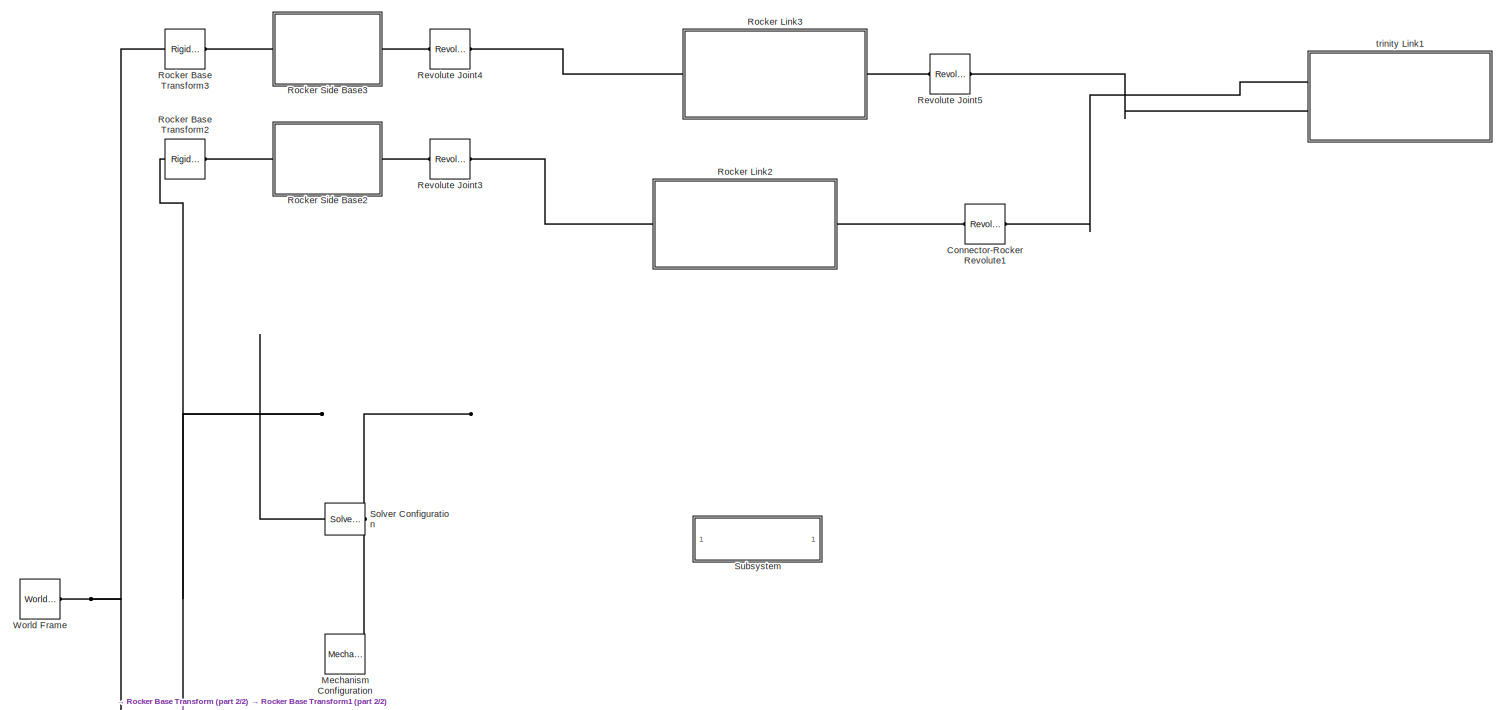
[diagram: root canvas - part 1/2, full width, top band]
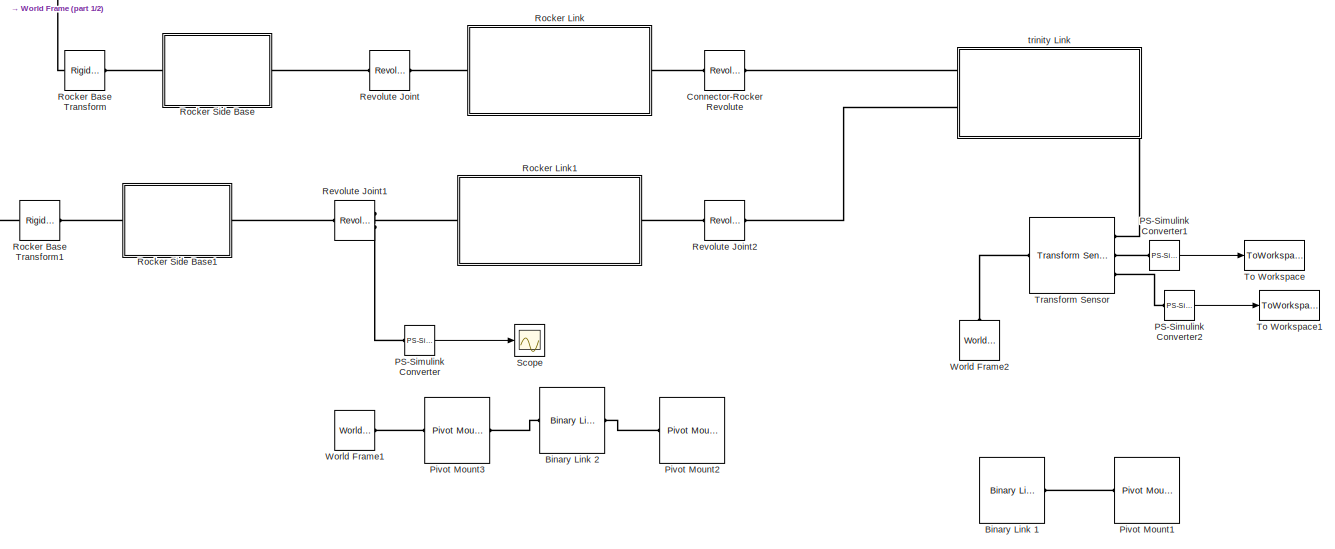
[diagram: root canvas - part 2/2, full width, bottom band]
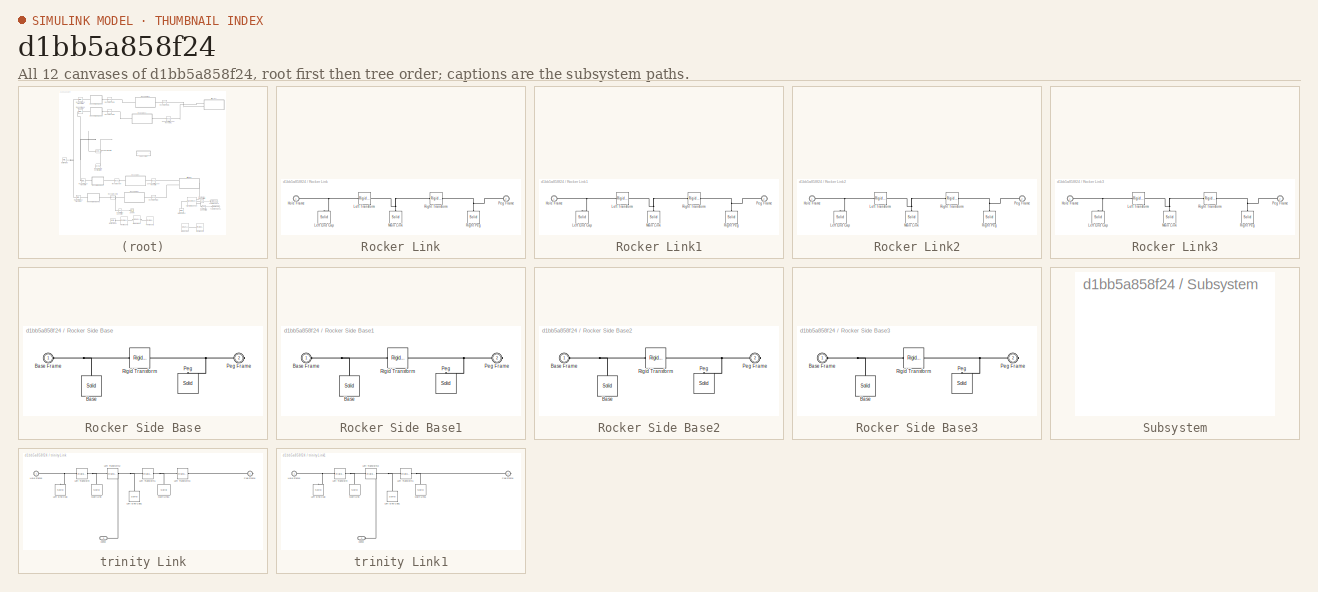
[diagram: thumbnail index - all 12 canvases of the model, root first then tree order]
MODEL slx_d1bb5a858f24
KIND model
CONFIG AbsTol = auto
CONFIG EnableMultiTasking = off
CONFIG FixedStep = auto
CONFIG MaxStep = auto
CONFIG MinStep = auto
CONFIG RelTol = 1e-3
CONFIG SampleTimeConstraint = Unconstrained
CONFIG Solver = VariableStepAuto
CONFIG SolverName = VariableStepAuto
CONFIG StartTime = 0.0
CONFIG StopTime = 10.0
BLOCK [Reference] Binary Link 1  REF=smdoc_compound_rigid_bodies/Binary Link A
  Commented = on
  Ports = [0, 0, 0, 0, 0, 1, 1]
  SourceBlock = smdoc_compound_rigid_bodies/Binary Link A
BLOCK [Reference] Binary Link 2  REF=smdoc_compound_rigid_bodies/Binary Link A
  Commented = on
  Ports = [0, 0, 0, 0, 0, 1, 1]
  SourceBlock = smdoc_compound_rigid_bodies/Binary Link A
BLOCK [Reference] Connector-Rocker Revolute  REF=sm_lib/Joints/Revolute Joint
  Ports = [0, 0, 0, 0, 0, 1, 1]
  SourceBlock = sm_lib/Joints/Revolute Joint
  SourceProductBaseCode = MS
  SourceProductName = Simscape Multibody
  SourceType = Revolute Joint
BLOCK [Reference] Connector-Rocker Revolute1  REF=sm_lib/Joints/Revolute Joint
  Ports = [0, 0, 0, 0, 0, 1, 1]
  SourceBlock = sm_lib/Joints/Revolute Joint
  SourceProductBaseCode = MS
  SourceProductName = Simscape Multibody
  SourceType = Revolute Joint
BLOCK [Reference] Mechanism Configuration  REF=sm_lib/Utilities/Mechanism
Configuration
  Ports = [0, 0, 0, 0, 0, 0, 1]
  SourceBlock = sm_lib/Utilities/Mechanism\nConfiguration
  SourceProductBaseCode = MS
  SourceProductName = Simscape Multibody
  SourceType = Mechanism\nConfiguration
BLOCK [Reference] PS-Simulink Converter  REF=nesl_utility/PS-Simulink
Converter
  Ports = [0, 1, 0, 0, 0, 1]
  SourceBlock = nesl_utility/PS-Simulink\nConverter
  SourceProductBaseCode = SS
  SourceProductName = Simscape
  SourceType = PS-Simulink\nConverter
BLOCK [Reference] PS-Simulink Converter1  REF=nesl_utility/PS-Simulink
Converter
  Ports = [0, 1, 0, 0, 0, 1]
  SourceBlock = nesl_utility/PS-Simulink\nConverter
  SourceProductBaseCode = SS
  SourceProductName = Simscape
  SourceType = PS-Simulink\nConverter
BLOCK [Reference] PS-Simulink Converter2  REF=nesl_utility/PS-Simulink
Converter
  Ports = [0, 1, 0, 0, 0, 1]
  SourceBlock = nesl_utility/PS-Simulink\nConverter
  SourceProductBaseCode = SS
  SourceProductName = Simscape
  SourceType = PS-Simulink\nConverter
BLOCK [Reference] Pivot Mount1  REF=smdoc_compound_rigid_bodies/Pivot Mount
  Commented = on
  Ports = [0, 0, 0, 0, 0, 1, 1]
  SourceBlock = smdoc_compound_rigid_bodies/Pivot Mount
BLOCK [Reference] Pivot Mount2  REF=smdoc_compound_rigid_bodies/Pivot Mount
  Commented = on
  Ports = [0, 0, 0, 0, 0, 1, 1]
  SourceBlock = smdoc_compound_rigid_bodies/Pivot Mount
BLOCK [Reference] Pivot Mount3  REF=smdoc_compound_rigid_bodies/Pivot Mount
  Commented = on
  Ports = [0, 0, 0, 0, 0, 1, 1]
  SourceBlock = smdoc_compound_rigid_bodies/Pivot Mount
BLOCK [Reference] Revolute Joint  REF=sm_lib/Joints/Revolute Joint
  Ports = [0, 0, 0, 0, 0, 1, 1]
  SourceBlock = sm_lib/Joints/Revolute Joint
  SourceProductBaseCode = MS
  SourceProductName = Simscape Multibody
  SourceType = Revolute Joint
BLOCK [Reference] Revolute Joint1  REF=sm_lib/Joints/Revolute Joint
  Ports = [0, 0, 0, 0, 0, 1, 2]
  SourceBlock = sm_lib/Joints/Revolute Joint
  SourceProductBaseCode = MS
  SourceProductName = Simscape Multibody
  SourceType = Revolute Joint
BLOCK [Reference] Revolute Joint2  REF=sm_lib/Joints/Revolute Joint
  Ports = [0, 0, 0, 0, 0, 1, 1]
  SourceBlock = sm_lib/Joints/Revolute Joint
  SourceProductBaseCode = MS
  SourceProductName = Simscape Multibody
  SourceType = Revolute Joint
BLOCK [Reference] Revolute Joint3  REF=sm_lib/Joints/Revolute Joint
  Ports = [0, 0, 0, 0, 0, 1, 1]
  SourceBlock = sm_lib/Joints/Revolute Joint
  SourceProductBaseCode = MS
  SourceProductName = Simscape Multibody
  SourceType = Revolute Joint
BLOCK [Reference] Revolute Joint4  REF=sm_lib/Joints/Revolute Joint
  Ports = [0, 0, 0, 0, 0, 1, 1]
  SourceBlock = sm_lib/Joints/Revolute Joint
  SourceProductBaseCode = MS
  SourceProductName = Simscape Multibody
  SourceType = Revolute Joint
BLOCK [Reference] Revolute Joint5  REF=sm_lib/Joints/Revolute Joint
  Ports = [0, 0, 0, 0, 0, 1, 1]
  SourceBlock = sm_lib/Joints/Revolute Joint
  SourceProductBaseCode = MS
  SourceProductName = Simscape Multibody
  SourceType = Revolute Joint
BLOCK [Reference] Rocker Base Transform  REF=sm_lib/Frames and
Transforms/Rigid
Transform
  Ports = [0, 0, 0, 0, 0, 1, 1]
  SourceBlock = sm_lib/Frames and\nTransforms/Rigid\nTransform
  SourceProductBaseCode = MS
  SourceProductName = Simscape Multibody
  SourceType = Rigid\nTransform
BLOCK [Reference] Rocker Base Transform1  REF=sm_lib/Frames and
Transforms/Rigid
Transform
  Ports = [0, 0, 0, 0, 0, 1, 1]
  SourceBlock = sm_lib/Frames and\nTransforms/Rigid\nTransform
  SourceProductBaseCode = MS
  SourceProductName = Simscape Multibody
  SourceType = Rigid\nTransform
BLOCK [Reference] Rocker Base Transform2  REF=sm_lib/Frames and
Transforms/Rigid
Transform
  Ports = [0, 0, 0, 0, 0, 1, 1]
  SourceBlock = sm_lib/Frames and\nTransforms/Rigid\nTransform
  SourceProductBaseCode = MS
  SourceProductName = Simscape Multibody
  SourceType = Rigid\nTransform
BLOCK [Reference] Rocker Base Transform3  REF=sm_lib/Frames and
Transforms/Rigid
Transform
  Ports = [0, 0, 0, 0, 0, 1, 1]
  SourceBlock = sm_lib/Frames and\nTransforms/Rigid\nTransform
  SourceProductBaseCode = MS
  SourceProductName = Simscape Multibody
  SourceType = Rigid\nTransform
BLOCK [SubSystem] Rocker Link
  Ports = [0, 0, 0, 0, 0, 1, 1]
  RequestExecContextInheritance = off
  Variant = off
BLOCK [PMIOPort] Rocker Link/Hole Frame
  Port = 1
  Side = Left
BLOCK [Reference] Rocker Link/Left End Cap  REF=sm_lib/Body Elements/Solid
  Ports = [0, 0, 0, 0, 0, 0, 1]
  SourceBlock = sm_lib/Body Elements/Solid
  SourceProductBaseCode = MS
  SourceProductName = Simscape Multibody
  SourceType = Solid
BLOCK [Reference] Rocker Link/Left Transform  REF=sm_lib/Frames and
Transforms/Rigid
Transform
  Ports = [0, 0, 0, 0, 0, 1, 1]
  SourceBlock = sm_lib/Frames and\nTransforms/Rigid\nTransform
  SourceProductBaseCode = MS
  SourceProductName = Simscape Multibody
  SourceType = Rigid\nTransform
BLOCK [Reference] Rocker Link/Main Link  REF=sm_lib/Body Elements/Solid
  Ports = [0, 0, 0, 0, 0, 0, 1]
  SourceBlock = sm_lib/Body Elements/Solid
  SourceProductBaseCode = MS
  SourceProductName = Simscape Multibody
  SourceType = Solid
BLOCK [PMIOPort] Rocker Link/Peg Frame
  Port = 2
  Side = Right
BLOCK [Reference] Rocker Link/Right Peg  REF=sm_lib/Body Elements/Solid
  Ports = [0, 0, 0, 0, 0, 0, 1]
  SourceBlock = sm_lib/Body Elements/Solid
  SourceProductBaseCode = MS
  SourceProductName = Simscape Multibody
  SourceType = Solid
BLOCK [Reference] Rocker Link/Right Transform  REF=sm_lib/Frames and
Transforms/Rigid
Transform
  Ports = [0, 0, 0, 0, 0, 1, 1]
  SourceBlock = sm_lib/Frames and\nTransforms/Rigid\nTransform
  SourceProductBaseCode = MS
  SourceProductName = Simscape Multibody
  SourceType = Rigid\nTransform
BLOCK [SubSystem] Rocker Link1
  Ports = [0, 0, 0, 0, 0, 1, 1]
  RequestExecContextInheritance = off
  Variant = off
BLOCK [PMIOPort] Rocker Link1/Hole Frame
  Port = 1
  Side = Left
BLOCK [Reference] Rocker Link1/Left End Cap  REF=sm_lib/Body Elements/Solid
  Ports = [0, 0, 0, 0, 0, 0, 1]
  SourceBlock = sm_lib/Body Elements/Solid
  SourceProductBaseCode = MS
  SourceProductName = Simscape Multibody
  SourceType = Solid
BLOCK [Reference] Rocker Link1/Left Transform  REF=sm_lib/Frames and
Transforms/Rigid
Transform
  Ports = [0, 0, 0, 0, 0, 1, 1]
  SourceBlock = sm_lib/Frames and\nTransforms/Rigid\nTransform
  SourceProductBaseCode = MS
  SourceProductName = Simscape Multibody
  SourceType = Rigid\nTransform
BLOCK [Reference] Rocker Link1/Main Link  REF=sm_lib/Body Elements/Solid
  Ports = [0, 0, 0, 0, 0, 0, 1]
  SourceBlock = sm_lib/Body Elements/Solid
  SourceProductBaseCode = MS
  SourceProductName = Simscape Multibody
  SourceType = Solid
BLOCK [PMIOPort] Rocker Link1/Peg Frame
  Port = 2
  Side = Right
BLOCK [Reference] Rocker Link1/Right Peg  REF=sm_lib/Body Elements/Solid
  Ports = [0, 0, 0, 0, 0, 0, 1]
  SourceBlock = sm_lib/Body Elements/Solid
  SourceProductBaseCode = MS
  SourceProductName = Simscape Multibody
  SourceType = Solid
BLOCK [Reference] Rocker Link1/Right Transform  REF=sm_lib/Frames and
Transforms/Rigid
Transform
  Ports = [0, 0, 0, 0, 0, 1, 1]
  SourceBlock = sm_lib/Frames and\nTransforms/Rigid\nTransform
  SourceProductBaseCode = MS
  SourceProductName = Simscape Multibody
  SourceType = Rigid\nTransform
BLOCK [SubSystem] Rocker Link2
  Ports = [0, 0, 0, 0, 0, 1, 1]
  RequestExecContextInheritance = off
  Variant = off
BLOCK [PMIOPort] Rocker Link2/Hole Frame
  Port = 1
  Side = Left
BLOCK [Reference] Rocker Link2/Left End Cap  REF=sm_lib/Body Elements/Solid
  Ports = [0, 0, 0, 0, 0, 0, 1]
  SourceBlock = sm_lib/Body Elements/Solid
  SourceProductBaseCode = MS
  SourceProductName = Simscape Multibody
  SourceType = Solid
BLOCK [Reference] Rocker Link2/Left Transform  REF=sm_lib/Frames and
Transforms/Rigid
Transform
  Ports = [0, 0, 0, 0, 0, 1, 1]
  SourceBlock = sm_lib/Frames and\nTransforms/Rigid\nTransform
  SourceProductBaseCode = MS
  SourceProductName = Simscape Multibody
  SourceType = Rigid\nTransform
BLOCK [Reference] Rocker Link2/Main Link  REF=sm_lib/Body Elements/Solid
  Ports = [0, 0, 0, 0, 0, 0, 1]
  SourceBlock = sm_lib/Body Elements/Solid
  SourceProductBaseCode = MS
  SourceProductName = Simscape Multibody
  SourceType = Solid
BLOCK [PMIOPort] Rocker Link2/Peg Frame
  Port = 2
  Side = Right
BLOCK [Reference] Rocker Link2/Right Peg  REF=sm_lib/Body Elements/Solid
  Ports = [0, 0, 0, 0, 0, 0, 1]
  SourceBlock = sm_lib/Body Elements/Solid
  SourceProductBaseCode = MS
  SourceProductName = Simscape Multibody
  SourceType = Solid
BLOCK [Reference] Rocker Link2/Right Transform  REF=sm_lib/Frames and
Transforms/Rigid
Transform
  Ports = [0, 0, 0, 0, 0, 1, 1]
  SourceBlock = sm_lib/Frames and\nTransforms/Rigid\nTransform
  SourceProductBaseCode = MS
  SourceProductName = Simscape Multibody
  SourceType = Rigid\nTransform
BLOCK [SubSystem] Rocker Link3
  Ports = [0, 0, 0, 0, 0, 1, 1]
  RequestExecContextInheritance = off
  Variant = off
BLOCK [PMIOPort] Rocker Link3/Hole Frame
  Port = 1
  Side = Left
BLOCK [Reference] Rocker Link3/Left End Cap  REF=sm_lib/Body Elements/Solid
  Ports = [0, 0, 0, 0, 0, 0, 1]
  SourceBlock = sm_lib/Body Elements/Solid
  SourceProductBaseCode = MS
  SourceProductName = Simscape Multibody
  SourceType = Solid
BLOCK [Reference] Rocker Link3/Left Transform  REF=sm_lib/Frames and
Transforms/Rigid
Transform
  Ports = [0, 0, 0, 0, 0, 1, 1]
  SourceBlock = sm_lib/Frames and\nTransforms/Rigid\nTransform
  SourceProductBaseCode = MS
  SourceProductName = Simscape Multibody
  SourceType = Rigid\nTransform
BLOCK [Reference] Rocker Link3/Main Link  REF=sm_lib/Body Elements/Solid
  Ports = [0, 0, 0, 0, 0, 0, 1]
  SourceBlock = sm_lib/Body Elements/Solid
  SourceProductBaseCode = MS
  SourceProductName = Simscape Multibody
  SourceType = Solid
BLOCK [PMIOPort] Rocker Link3/Peg Frame
  Port = 2
  Side = Right
BLOCK [Reference] Rocker Link3/Right Peg  REF=sm_lib/Body Elements/Solid
  Ports = [0, 0, 0, 0, 0, 0, 1]
  SourceBlock = sm_lib/Body Elements/Solid
  SourceProductBaseCode = MS
  SourceProductName = Simscape Multibody
  SourceType = Solid
BLOCK [Reference] Rocker Link3/Right Transform  REF=sm_lib/Frames and
Transforms/Rigid
Transform
  Ports = [0, 0, 0, 0, 0, 1, 1]
  SourceBlock = sm_lib/Frames and\nTransforms/Rigid\nTransform
  SourceProductBaseCode = MS
  SourceProductName = Simscape Multibody
  SourceType = Rigid\nTransform
BLOCK [SubSystem] Rocker Side Base
  Ports = [0, 0, 0, 0, 0, 1, 1]
  RequestExecContextInheritance = off
  Variant = off
BLOCK [Reference] Rocker Side Base/Base  REF=sm_lib/Body Elements/Solid
  Ports = [0, 0, 0, 0, 0, 0, 1]
  SourceBlock = sm_lib/Body Elements/Solid
  SourceProductBaseCode = MS
  SourceProductName = Simscape Multibody
  SourceType = Solid
BLOCK [PMIOPort] Rocker Side Base/Base Frame
  Port = 1
  Side = Left
BLOCK [Reference] Rocker Side Base/Peg  REF=sm_lib/Body Elements/Solid
  Ports = [0, 0, 0, 0, 0, 0, 1]
  SourceBlock = sm_lib/Body Elements/Solid
  SourceProductBaseCode = MS
  SourceProductName = Simscape Multibody
  SourceType = Solid
BLOCK [PMIOPort] Rocker Side Base/Peg Frame
  Port = 2
  Side = Right
BLOCK [Reference] Rocker Side Base/Rigid Transform  REF=sm_lib/Frames and
Transforms/Rigid
Transform
  Ports = [0, 0, 0, 0, 0, 1, 1]
  SourceBlock = sm_lib/Frames and\nTransforms/Rigid\nTransform
  SourceProductBaseCode = MS
  SourceProductName = Simscape Multibody
  SourceType = Rigid\nTransform
BLOCK [SubSystem] Rocker Side Base1
  Ports = [0, 0, 0, 0, 0, 1, 1]
  RequestExecContextInheritance = off
  Variant = off
BLOCK [Reference] Rocker Side Base1/Base  REF=sm_lib/Body Elements/Solid
  Ports = [0, 0, 0, 0, 0, 0, 1]
  SourceBlock = sm_lib/Body Elements/Solid
  SourceProductBaseCode = MS
  SourceProductName = Simscape Multibody
  SourceType = Solid
BLOCK [PMIOPort] Rocker Side Base1/Base Frame
  Port = 1
  Side = Left
BLOCK [Reference] Rocker Side Base1/Peg  REF=sm_lib/Body Elements/Solid
  Ports = [0, 0, 0, 0, 0, 0, 1]
  SourceBlock = sm_lib/Body Elements/Solid
  SourceProductBaseCode = MS
  SourceProductName = Simscape Multibody
  SourceType = Solid
BLOCK [PMIOPort] Rocker Side Base1/Peg Frame
  Port = 2
  Side = Right
BLOCK [Reference] Rocker Side Base1/Rigid Transform  REF=sm_lib/Frames and
Transforms/Rigid
Transform
  Ports = [0, 0, 0, 0, 0, 1, 1]
  SourceBlock = sm_lib/Frames and\nTransforms/Rigid\nTransform
  SourceProductBaseCode = MS
  SourceProductName = Simscape Multibody
  SourceType = Rigid\nTransform
BLOCK [SubSystem] Rocker Side Base2
  Ports = [0, 0, 0, 0, 0, 1, 1]
  RequestExecContextInheritance = off
  Variant = off
BLOCK [Reference] Rocker Side Base2/Base  REF=sm_lib/Body Elements/Solid
  Ports = [0, 0, 0, 0, 0, 0, 1]
  SourceBlock = sm_lib/Body Elements/Solid
  SourceProductBaseCode = MS
  SourceProductName = Simscape Multibody
  SourceType = Solid
BLOCK [PMIOPort] Rocker Side Base2/Base Frame
  Port = 1
  Side = Left
BLOCK [Reference] Rocker Side Base2/Peg  REF=sm_lib/Body Elements/Solid
  Ports = [0, 0, 0, 0, 0, 0, 1]
  SourceBlock = sm_lib/Body Elements/Solid
  SourceProductBaseCode = MS
  SourceProductName = Simscape Multibody
  SourceType = Solid
BLOCK [PMIOPort] Rocker Side Base2/Peg Frame
  Port = 2
  Side = Right
BLOCK [Reference] Rocker Side Base2/Rigid Transform  REF=sm_lib/Frames and
Transforms/Rigid
Transform
  Ports = [0, 0, 0, 0, 0, 1, 1]
  SourceBlock = sm_lib/Frames and\nTransforms/Rigid\nTransform
  SourceProductBaseCode = MS
  SourceProductName = Simscape Multibody
  SourceType = Rigid\nTransform
BLOCK [SubSystem] Rocker Side Base3
  Ports = [0, 0, 0, 0, 0, 1, 1]
  RequestExecContextInheritance = off
  Variant = off
BLOCK [Reference] Rocker Side Base3/Base  REF=sm_lib/Body Elements/Solid
  Ports = [0, 0, 0, 0, 0, 0, 1]
  SourceBlock = sm_lib/Body Elements/Solid
  SourceProductBaseCode = MS
  SourceProductName = Simscape Multibody
  SourceType = Solid
BLOCK [PMIOPort] Rocker Side Base3/Base Frame
  Port = 1
  Side = Left
BLOCK [Reference] Rocker Side Base3/Peg  REF=sm_lib/Body Elements/Solid
  Ports = [0, 0, 0, 0, 0, 0, 1]
  SourceBlock = sm_lib/Body Elements/Solid
  SourceProductBaseCode = MS
  SourceProductName = Simscape Multibody
  SourceType = Solid
BLOCK [PMIOPort] Rocker Side Base3/Peg Frame
  Port = 2
  Side = Right
BLOCK [Reference] Rocker Side Base3/Rigid Transform  REF=sm_lib/Frames and
Transforms/Rigid
Transform
  Ports = [0, 0, 0, 0, 0, 1, 1]
  SourceBlock = sm_lib/Frames and\nTransforms/Rigid\nTransform
  SourceProductBaseCode = MS
  SourceProductName = Simscape Multibody
  SourceType = Rigid\nTransform
BLOCK [Scope] Scope
  NumInputPorts = 1
  Ports = [1]
  ScopeSpecificationString = Simulink.scopes.TimeScopeBlockCfg('CurrentConfiguration', extmgr.ConfigurationSet(extmgr.Configuration('Core','General UI',true),extmgr.Configuration('Core','Source UI',true),extmgr.Configuration('Sources','WiredSimulink',true),extmgr.Configuration('Visuals','Time Domain',true,'SerializedDisplays',{struct('MinYLimReal','0.09699','MaxYLimReal','6.12164','YLabelReal','','MinYLimMag','0.09699','MaxYL...<+1339ch>
BLOCK [Reference] Solver Configuration  REF=nesl_utility/Solver
Configuration
  Ports = [0, 0, 0, 0, 0, 0, 1]
  SourceBlock = nesl_utility/Solver\nConfiguration
  SourceProductBaseCode = SS
  SourceProductName = Simscape
  SourceType = Solver\nConfiguration
BLOCK [SubSystem] Subsystem
  OpenFcn = open_system('sm_lib')
  Ports = []
  RequestExecContextInheritance = off
  ShowPortLabels = none
  Variant = off
BLOCK [ToWorkspace] To Workspace
  FixptAsFi = on
  MaxDataPoints = inf
  Ports = [1]
  SampleTime = -1
  Save2DSignal = 3-D array (concatenate along third dimension)
  SaveFormat = Timeseries
  VariableName = X_pos
BLOCK [ToWorkspace] To Workspace1
  FixptAsFi = on
  MaxDataPoints = inf
  Ports = [1]
  SampleTime = -1
  Save2DSignal = 3-D array (concatenate along third dimension)
  SaveFormat = Timeseries
  VariableName = Y_pos
BLOCK [Reference] Transform Sensor  REF=sm_lib/Frames and
Transforms/Transform
Sensor
  Ports = [0, 0, 0, 0, 0, 1, 3]
  SourceBlock = sm_lib/Frames and\nTransforms/Transform\nSensor
  SourceProductBaseCode = MS
  SourceProductName = Simscape Multibody
  SourceType = Transform\nSensor
BLOCK [Reference] World Frame  REF=sm_lib/Frames and
Transforms/World Frame
  Ports = [0, 0, 0, 0, 0, 0, 1]
  SourceBlock = sm_lib/Frames and\nTransforms/World Frame
  SourceProductBaseCode = MS
  SourceProductName = Simscape Multibody
  SourceType = World Frame
BLOCK [Reference] World Frame1  REF=sm_lib/Frames and
Transforms/World Frame
  Commented = on
  Ports = [0, 0, 0, 0, 0, 0, 1]
  SourceBlock = sm_lib/Frames and\nTransforms/World Frame
  SourceProductBaseCode = MS
  SourceProductName = Simscape Multibody
  SourceType = World Frame
BLOCK [Reference] World Frame2  REF=sm_lib/Frames and
Transforms/World Frame
  Ports = [0, 0, 0, 0, 0, 0, 1]
  SourceBlock = sm_lib/Frames and\nTransforms/World Frame
  SourceProductBaseCode = MS
  SourceProductName = Simscape Multibody
  SourceType = World Frame
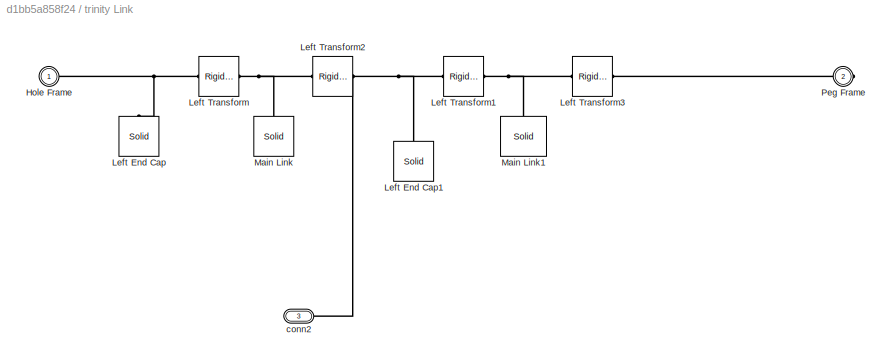
BLOCK [SubSystem] trinity Link
  Ports = [0, 0, 0, 0, 0, 2, 1]
  RequestExecContextInheritance = off
  Variant = off
BLOCK [PMIOPort] trinity Link/Hole Frame
  Port = 1
  Side = Left
BLOCK [Reference] trinity Link/Left End Cap  REF=sm_lib/Body Elements/Solid
  Ports = [0, 0, 0, 0, 0, 0, 1]
  SourceBlock = sm_lib/Body Elements/Solid
  SourceProductBaseCode = MS
  SourceProductName = Simscape Multibody
  SourceType = Solid
BLOCK [Reference] trinity Link/Left End Cap1  REF=sm_lib/Body Elements/Solid
  Ports = [0, 0, 0, 0, 0, 0, 1]
  SourceBlock = sm_lib/Body Elements/Solid
  SourceProductBaseCode = MS
  SourceProductName = Simscape Multibody
  SourceType = Solid
BLOCK [Reference] trinity Link/Left Transform  REF=sm_lib/Frames and
Transforms/Rigid
Transform
  Ports = [0, 0, 0, 0, 0, 1, 1]
  SourceBlock = sm_lib/Frames and\nTransforms/Rigid\nTransform
  SourceProductBaseCode = MS
  SourceProductName = Simscape Multibody
  SourceType = Rigid\nTransform
BLOCK [Reference] trinity Link/Left Transform1  REF=sm_lib/Frames and
Transforms/Rigid
Transform
  Ports = [0, 0, 0, 0, 0, 1, 1]
  SourceBlock = sm_lib/Frames and\nTransforms/Rigid\nTransform
  SourceProductBaseCode = MS
  SourceProductName = Simscape Multibody
  SourceType = Rigid\nTransform
BLOCK [Reference] trinity Link/Left Transform2  REF=sm_lib/Frames and
Transforms/Rigid
Transform
  Ports = [0, 0, 0, 0, 0, 1, 1]
  SourceBlock = sm_lib/Frames and\nTransforms/Rigid\nTransform
  SourceProductBaseCode = MS
  SourceProductName = Simscape Multibody
  SourceType = Rigid\nTransform
BLOCK [Reference] trinity Link/Left Transform3  REF=sm_lib/Frames and
Transforms/Rigid
Transform
  Ports = [0, 0, 0, 0, 0, 1, 1]
  SourceBlock = sm_lib/Frames and\nTransforms/Rigid\nTransform
  SourceProductBaseCode = MS
  SourceProductName = Simscape Multibody
  SourceType = Rigid\nTransform
BLOCK [Reference] trinity Link/Main Link  REF=sm_lib/Body Elements/Solid
  Ports = [0, 0, 0, 0, 0, 0, 1]
  SourceBlock = sm_lib/Body Elements/Solid
  SourceProductBaseCode = MS
  SourceProductName = Simscape Multibody
  SourceType = Solid
BLOCK [Reference] trinity Link/Main Link1  REF=sm_lib/Body Elements/Solid
  Ports = [0, 0, 0, 0, 0, 0, 1]
  SourceBlock = sm_lib/Body Elements/Solid
  SourceProductBaseCode = MS
  SourceProductName = Simscape Multibody
  SourceType = Solid
BLOCK [PMIOPort] trinity Link/Peg Frame
  Port = 2
  Side = Right
BLOCK [PMIOPort] trinity Link/conn2
  Port = 3
  Side = Left
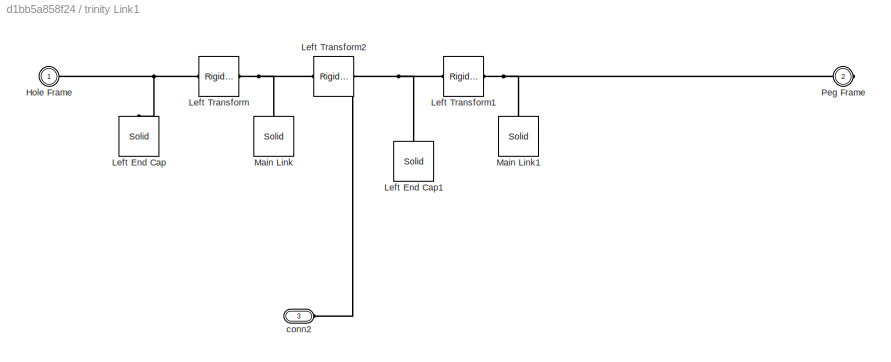
BLOCK [SubSystem] trinity Link1
  Ports = [0, 0, 0, 0, 0, 2, 1]
  RequestExecContextInheritance = off
  Variant = off
BLOCK [PMIOPort] trinity Link1/Hole Frame
  Port = 1
  Side = Left
BLOCK [Reference] trinity Link1/Left End Cap  REF=sm_lib/Body Elements/Solid
  Ports = [0, 0, 0, 0, 0, 0, 1]
  SourceBlock = sm_lib/Body Elements/Solid
  SourceProductBaseCode = MS
  SourceProductName = Simscape Multibody
  SourceType = Solid
BLOCK [Reference] trinity Link1/Left End Cap1  REF=sm_lib/Body Elements/Solid
  Ports = [0, 0, 0, 0, 0, 0, 1]
  SourceBlock = sm_lib/Body Elements/Solid
  SourceProductBaseCode = MS
  SourceProductName = Simscape Multibody
  SourceType = Solid
BLOCK [Reference] trinity Link1/Left Transform  REF=sm_lib/Frames and
Transforms/Rigid
Transform
  Ports = [0, 0, 0, 0, 0, 1, 1]
  SourceBlock = sm_lib/Frames and\nTransforms/Rigid\nTransform
  SourceProductBaseCode = MS
  SourceProductName = Simscape Multibody
  SourceType = Rigid\nTransform
BLOCK [Reference] trinity Link1/Left Transform1  REF=sm_lib/Frames and
Transforms/Rigid
Transform
  Ports = [0, 0, 0, 0, 0, 1, 1]
  SourceBlock = sm_lib/Frames and\nTransforms/Rigid\nTransform
  SourceProductBaseCode = MS
  SourceProductName = Simscape Multibody
  SourceType = Rigid\nTransform
BLOCK [Reference] trinity Link1/Left Transform2  REF=sm_lib/Frames and
Transforms/Rigid
Transform
  Ports = [0, 0, 0, 0, 0, 1, 1]
  SourceBlock = sm_lib/Frames and\nTransforms/Rigid\nTransform
  SourceProductBaseCode = MS
  SourceProductName = Simscape Multibody
  SourceType = Rigid\nTransform
BLOCK [Reference] trinity Link1/Main Link  REF=sm_lib/Body Elements/Solid
  Ports = [0, 0, 0, 0, 0, 0, 1]
  SourceBlock = sm_lib/Body Elements/Solid
  SourceProductBaseCode = MS
  SourceProductName = Simscape Multibody
  SourceType = Solid
BLOCK [Reference] trinity Link1/Main Link1  REF=sm_lib/Body Elements/Solid
  Ports = [0, 0, 0, 0, 0, 0, 1]
  SourceBlock = sm_lib/Body Elements/Solid
  SourceProductBaseCode = MS
  SourceProductName = Simscape Multibody
  SourceType = Solid
BLOCK [PMIOPort] trinity Link1/Peg Frame
  Port = 2
  Side = Right
BLOCK [PMIOPort] trinity Link1/conn2
  Port = 3
  Side = Left
LINE PS-Simulink Converter1:1 -> To Workspace:1
LINE PS-Simulink Converter2:1 -> To Workspace1:1
LINE PS-Simulink Converter:1 -> Scope:1
PLINE Binary Link 1:RConn1 -- Pivot Mount1:LConn1
PLINE Binary Link 2:LConn1 -- Pivot Mount3:RConn1
PLINE Binary Link 2:RConn1 -- Pivot Mount2:LConn1
PLINE Connector-Rocker Revolute1:LConn1 -- Rocker Link2:RConn1
PLINE Connector-Rocker Revolute1:RConn1 -- trinity Link1:LConn1
PLINE Connector-Rocker Revolute:LConn1 -- Rocker Link:RConn1
PLINE Connector-Rocker Revolute:RConn1 -- trinity Link:LConn1
PNET net1: Mechanism Configuration:RConn1 -- Rocker Base Transform1:LConn1 -- Rocker Base Transform2:LConn1 -- Rocker Base Transform3:LConn1 -- Rocker Base Transform:LConn1 -- Solver Configuration:RConn1 -- World Frame:RConn1
PLINE PS-Simulink Converter1:LConn1 -- Transform Sensor:RConn2
PLINE PS-Simulink Converter2:LConn1 -- Transform Sensor:RConn3
PLINE PS-Simulink Converter:LConn1 -- Revolute Joint1:RConn2
PLINE Pivot Mount3:LConn1 -- World Frame1:RConn1
PLINE Revolute Joint1:LConn1 -- Rocker Side Base1:RConn1
PLINE Revolute Joint1:RConn1 -- Rocker Link1:LConn1
PLINE Revolute Joint2:LConn1 -- Rocker Link1:RConn1
PLINE Revolute Joint2:RConn1 -- trinity Link:LConn2
PLINE Revolute Joint3:LConn1 -- Rocker Side Base2:RConn1
PLINE Revolute Joint3:RConn1 -- Rocker Link2:LConn1
PLINE Revolute Joint4:LConn1 -- Rocker Side Base3:RConn1
PLINE Revolute Joint4:RConn1 -- Rocker Link3:LConn1
PLINE Revolute Joint5:LConn1 -- Rocker Link3:RConn1
PLINE Revolute Joint5:RConn1 -- trinity Link1:LConn2
PLINE Revolute Joint:LConn1 -- Rocker Side Base:RConn1
PLINE Revolute Joint:RConn1 -- Rocker Link:LConn1
PLINE Rocker Base Transform1:RConn1 -- Rocker Side Base1:LConn1
PLINE Rocker Base Transform2:RConn1 -- Rocker Side Base2:LConn1
PLINE Rocker Base Transform3:RConn1 -- Rocker Side Base3:LConn1
PLINE Rocker Base Transform:RConn1 -- Rocker Side Base:LConn1
PNET net2: Rocker Link/Hole Frame:RConn1 -- Rocker Link/Left End Cap:RConn1 -- Rocker Link/Left Transform:RConn1
PNET net3: Rocker Link/Left Transform:LConn1 -- Rocker Link/Main Link:RConn1 -- Rocker Link/Right Transform:LConn1
PNET net4: Rocker Link/Peg Frame:RConn1 -- Rocker Link/Right Peg:RConn1 -- Rocker Link/Right Transform:RConn1
PNET net5: Rocker Link1/Hole Frame:RConn1 -- Rocker Link1/Left End Cap:RConn1 -- Rocker Link1/Left Transform:RConn1
PNET net6: Rocker Link1/Left Transform:LConn1 -- Rocker Link1/Main Link:RConn1 -- Rocker Link1/Right Transform:LConn1
PNET net7: Rocker Link1/Peg Frame:RConn1 -- Rocker Link1/Right Peg:RConn1 -- Rocker Link1/Right Transform:RConn1
PNET net8: Rocker Link2/Hole Frame:RConn1 -- Rocker Link2/Left End Cap:RConn1 -- Rocker Link2/Left Transform:RConn1
PNET net9: Rocker Link2/Left Transform:LConn1 -- Rocker Link2/Main Link:RConn1 -- Rocker Link2/Right Transform:LConn1
PNET net10: Rocker Link2/Peg Frame:RConn1 -- Rocker Link2/Right Peg:RConn1 -- Rocker Link2/Right Transform:RConn1
PNET net11: Rocker Link3/Hole Frame:RConn1 -- Rocker Link3/Left End Cap:RConn1 -- Rocker Link3/Left Transform:RConn1
PNET net12: Rocker Link3/Left Transform:LConn1 -- Rocker Link3/Main Link:RConn1 -- Rocker Link3/Right Transform:LConn1
PNET net13: Rocker Link3/Peg Frame:RConn1 -- Rocker Link3/Right Peg:RConn1 -- Rocker Link3/Right Transform:RConn1
PNET net14: Rocker Side Base/Base Frame:RConn1 -- Rocker Side Base/Base:RConn1 -- Rocker Side Base/Rigid Transform:LConn1
PNET net15: Rocker Side Base/Peg Frame:RConn1 -- Rocker Side Base/Peg:RConn1 -- Rocker Side Base/Rigid Transform:RConn1
PNET net16: Rocker Side Base1/Base Frame:RConn1 -- Rocker Side Base1/Base:RConn1 -- Rocker Side Base1/Rigid Transform:LConn1
PNET net17: Rocker Side Base1/Peg Frame:RConn1 -- Rocker Side Base1/Peg:RConn1 -- Rocker Side Base1/Rigid Transform:RConn1
PNET net18: Rocker Side Base2/Base Frame:RConn1 -- Rocker Side Base2/Base:RConn1 -- Rocker Side Base2/Rigid Transform:LConn1
PNET net19: Rocker Side Base2/Peg Frame:RConn1 -- Rocker Side Base2/Peg:RConn1 -- Rocker Side Base2/Rigid Transform:RConn1
PNET net20: Rocker Side Base3/Base Frame:RConn1 -- Rocker Side Base3/Base:RConn1 -- Rocker Side Base3/Rigid Transform:LConn1
PNET net21: Rocker Side Base3/Peg Frame:RConn1 -- Rocker Side Base3/Peg:RConn1 -- Rocker Side Base3/Rigid Transform:RConn1
PLINE Transform Sensor:LConn1 -- World Frame2:RConn1
PLINE Transform Sensor:RConn1 -- trinity Link:RConn1
PNET net22: trinity Link/Hole Frame:RConn1 -- trinity Link/Left End Cap:RConn1 -- trinity Link/Left Transform:RConn1
PNET net23: trinity Link/Left End Cap1:RConn1 -- trinity Link/Left Transform1:RConn1 -- trinity Link/Left Transform2:LConn1 -- trinity Link/conn2:RConn1
PNET net24: trinity Link/Left Transform1:LConn1 -- trinity Link/Left Transform3:RConn1 -- trinity Link/Main Link1:RConn1
PNET net25: trinity Link/Left Transform2:RConn1 -- trinity Link/Left Transform:LConn1 -- trinity Link/Main Link:RConn1
PLINE trinity Link/Left Transform3:LConn1 -- trinity Link/Peg Frame:RConn1
PNET net26: trinity Link1/Hole Frame:RConn1 -- trinity Link1/Left End Cap:RConn1 -- trinity Link1/Left Transform:RConn1
PNET net27: trinity Link1/Left End Cap1:RConn1 -- trinity Link1/Left Transform1:RConn1 -- trinity Link1/Left Transform2:LConn1 -- trinity Link1/conn2:RConn1
PNET net28: trinity Link1/Left Transform1:LConn1 -- trinity Link1/Main Link1:RConn1 -- trinity Link1/Peg Frame:RConn1
PNET net29: trinity Link1/Left Transform2:RConn1 -- trinity Link1/Left Transform:LConn1 -- trinity Link1/Main Link:RConn1
note: PNET lines group multi-terminal physical nets as a canonical sorted terminal list (undirected conserving connections); 2-terminal nets keep the pairwise PLINE form
